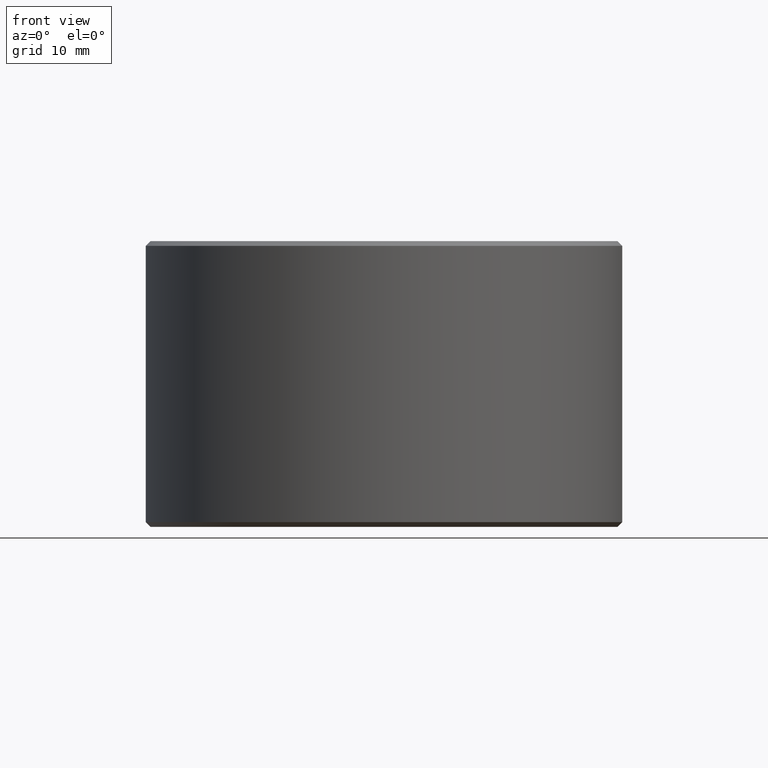
[diagram: clean part render]
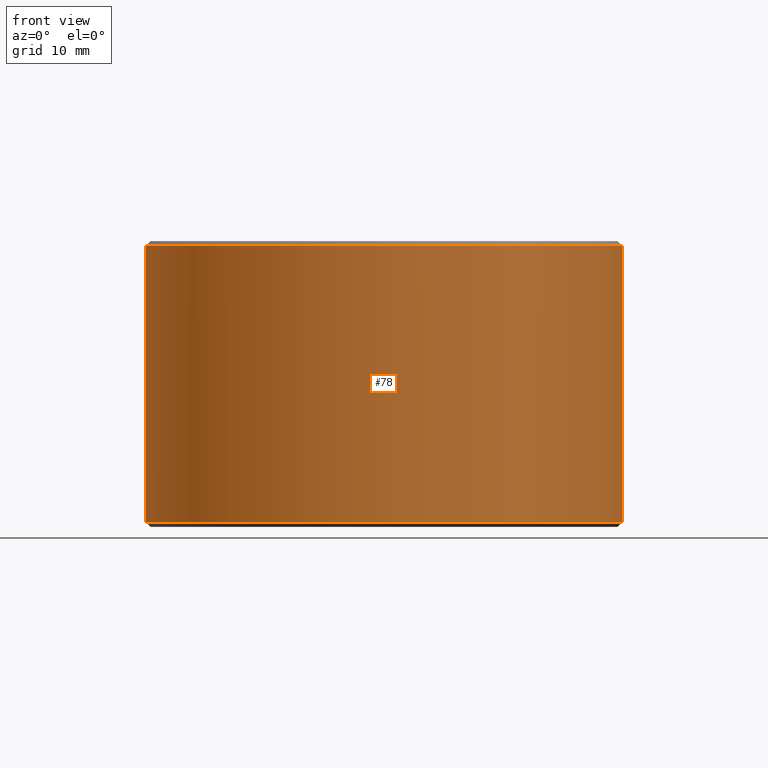
[diagram: same view with one face highlighted and labeled with its STEP entity id]
A machine part, front view. The second image highlights one B-rep face of the part: STEP entity #78.
In plain terms, the highlighted cylindrical surface (partial cylindrical patch) has radius 25 mm, axis along (0, -0, 1).
Its self-contained STEP definition (entity closure, byte-faithful):
#78=ADVANCED_FACE('',(#98),#99,.T.);
#98=FACE_OUTER_BOUND('',#130,.T.);
#99=CYLINDRICAL_SURFACE('',#131,25.0);
#130=EDGE_LOOP('',(#177,#178,#179,#180));
#131=AXIS2_PLACEMENT_3D('',#181,#182,#183);
#177=ORIENTED_EDGE('',*,*,#291,.F.);
#178=ORIENTED_EDGE('',*,*,#290,.F.);
#179=ORIENTED_EDGE('',*,*,#292,.F.);
#180=ORIENTED_EDGE('',*,*,#293,.T.);
#181=CARTESIAN_POINT('',(9.6941359124334E-015,-1.12099965294858E-014,15.0));
#182=DIRECTION('',(5.48707263966372E-016,-6.09939603923743E-016,1.0));
#183=DIRECTION('',(-1.0,-3.21624529935327E-016,5.48707263966372E-016));
#290=EDGE_CURVE('',#336,#332,#338,.T.);
#291=EDGE_CURVE('',#332,#339,#340,.T.);
#292=EDGE_CURVE('',#341,#336,#342,.T.);
#293=EDGE_CURVE('',#341,#339,#343,.T.);
#332=VERTEX_POINT('',#398);
#336=VERTEX_POINT('',#403);
#338=CIRCLE('',#406,25.0);
#339=VERTEX_POINT('',#407);
#340=LINE('',#408,#409);
#341=VERTEX_POINT('',#410);
#342=LINE('',#411,#412);
#343=CIRCLE('',#413,25.0);
#398=CARTESIAN_POINT('',(25.0,-1.50751245358653E-014,29.5));
#403=CARTESIAN_POINT('',(-25.0,-2.76274505796904E-014,29.5));
#406=AXIS2_PLACEMENT_3D('',#482,#483,#484);
#407=CARTESIAN_POINT('',(25.0,2.82016998817726E-015,0.499999999999987));
#408=CARTESIAN_POINT('',(25.0,-6.23100027897099E-015,15.0));
#409=VECTOR('',#485,1.0);
#410=CARTESIAN_POINT('',(-25.0,-9.49449387541526E-015,0.500000000000016));
#411=CARTESIAN_POINT('',(-25.0,-9.49449387541526E-015,0.500000000000016));
#412=VECTOR('',#486,10.0);
#413=AXIS2_PLACEMENT_3D('',#487,#488,#489);
#482=CARTESIAN_POINT('',(1.76503912399458E-014,-2.02764748816234E-014,29.5));
#483=DIRECTION('',(5.48707263966372E-016,-6.09939603923743E-016,1.0));
#484=DIRECTION('',(-1.0,-3.21624529935327E-016,5.48707263966372E-016));
#485=DIRECTION('',(-5.48707263966372E-016,6.09939603923743E-016,-1.0));
#486=DIRECTION('',(7.01841474259497E-016,-6.25274369112938E-016,1.0));
#487=CARTESIAN_POINT('',(1.73788058492098E-015,-2.1435181773482E-015,0.5));
#488=DIRECTION('',(5.48707263966372E-016,-6.09939603923743E-016,1.0));
#489=DIRECTION('',(-1.0,-3.21624529935327E-016,5.48707263966372E-016));